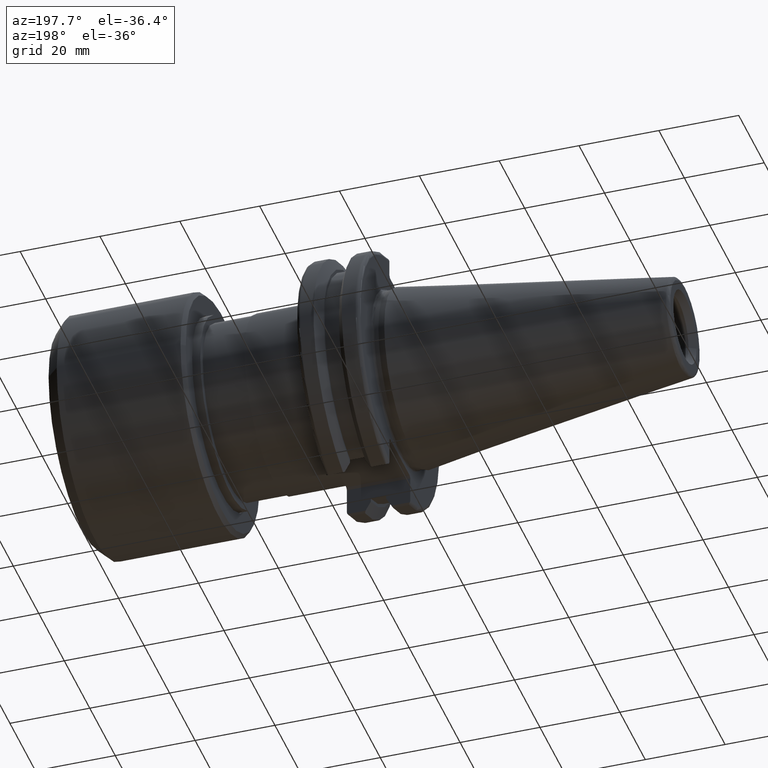
[diagram: clean part render]
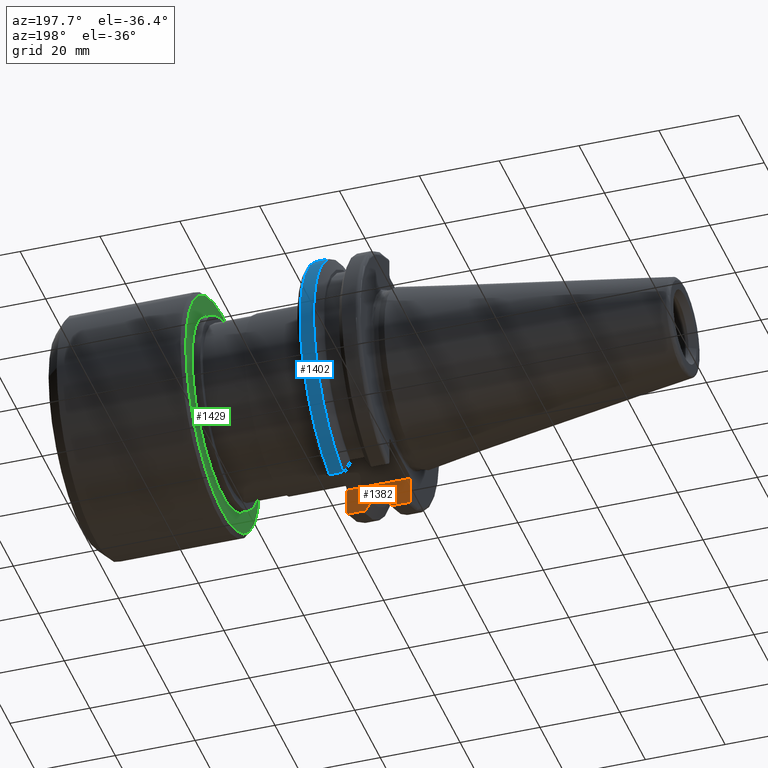
[diagram: same view with three faces highlighted in distinct colors, each labeled with its STEP entity id]
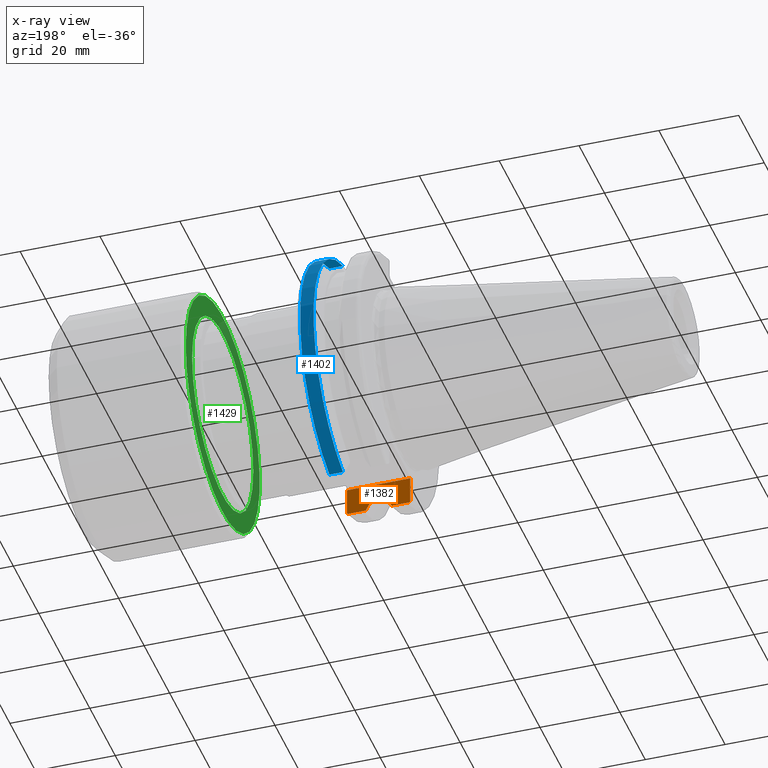
[diagram: x-ray of the same camera — body ghosted, the three highlighted faces saturated]
A machine part, auxiliary view with three faces highlighted in distinct colors.
The next image is the same camera in x-ray (body ghosted, the three faces saturated) — at least one of them is partly hidden behind the body in this view.
Their STEP definitions:

[orange] entity #1382 — the highlighted planar face has unit normal (0, -1, 0).
#253=(
BOUNDED_CURVE()
B_SPLINE_CURVE(2,(#2363,#2364,#2365),.UNSPECIFIED.,.F.,.F.)
B_SPLINE_CURVE_WITH_KNOTS((3,3),(0.,0.276549142795512),.UNSPECIFIED.)
CURVE()
GEOMETRIC_REPRESENTATION_ITEM()
RATIONAL_B_SPLINE_CURVE((1.,1.00095203904184,1.00031614445102))
REPRESENTATION_ITEM('')
);
#254=(
BOUNDED_CURVE()
B_SPLINE_CURVE(2,(#2373,#2374,#2375),.UNSPECIFIED.,.F.,.F.)
B_SPLINE_CURVE_WITH_KNOTS((3,3),(0.0550586467392022,0.33160778953585),
 .UNSPECIFIED.)
CURVE()
GEOMETRIC_REPRESENTATION_ITEM()
RATIONAL_B_SPLINE_CURVE((1.00031614445148,1.00095203904325,1.))
REPRESENTATION_ITEM('')
);
#269=B_SPLINE_CURVE_WITH_KNOTS('',3,(#2301,#2302,#2303,#2304,#2305,#2306),
 .UNSPECIFIED.,.F.,.F.,(4,2,4),(0.097738363091569,0.112311108149119,0.150804350305566),
 .UNSPECIFIED.);
#274=B_SPLINE_CURVE_WITH_KNOTS('',3,(#2378,#2379,#2380,#2381,#2382,#2383),
 .UNSPECIFIED.,.F.,.F.,(4,2,4),(0.452741154494498,0.491581665024872,0.505824174364157),
 .UNSPECIFIED.);
#309=PLANE('',#1591);
#374=FACE_OUTER_BOUND('',#452,.T.);
#452=EDGE_LOOP('',(#1130,#1131,#1132,#1133,#1134,#1135,#1136,#1137,#1138,
#1139,#1140,#1141));
#519=LINE('',#2184,#596);
#534=LINE('',#2228,#611);
#549=LINE('',#2361,#626);
#550=LINE('',#2367,#627);
#551=LINE('',#2369,#628);
#552=LINE('',#2371,#629);
#553=LINE('',#2377,#630);
#554=LINE('',#2384,#631);
#596=VECTOR('',#1784,10.);
#611=VECTOR('',#1819,10.);
#626=VECTOR('',#1854,10.);
#627=VECTOR('',#1855,10.);
#628=VECTOR('',#1856,10.);
#629=VECTOR('',#1857,10.);
#630=VECTOR('',#1858,10.);
#631=VECTOR('',#1859,10.);
#746=VERTEX_POINT('',#2181);
#747=VERTEX_POINT('',#2183);
#756=VERTEX_POINT('',#2206);
#766=VERTEX_POINT('',#2226);
#780=VERTEX_POINT('',#2300);
#791=VERTEX_POINT('',#2360);
#792=VERTEX_POINT('',#2362);
#793=VERTEX_POINT('',#2366);
#794=VERTEX_POINT('',#2368);
#795=VERTEX_POINT('',#2370);
#796=VERTEX_POINT('',#2372);
#797=VERTEX_POINT('',#2376);
#866=EDGE_CURVE('',#746,#747,#519,.T.);
#888=EDGE_CURVE('',#766,#756,#534,.T.);
#907=EDGE_CURVE('',#780,#746,#269,.T.);
#921=EDGE_CURVE('',#791,#780,#549,.T.);
#922=EDGE_CURVE('',#792,#791,#253,.T.);
#923=EDGE_CURVE('',#793,#792,#550,.T.);
#924=EDGE_CURVE('',#794,#793,#551,.T.);
#925=EDGE_CURVE('',#795,#794,#552,.T.);
#926=EDGE_CURVE('',#796,#795,#254,.T.);
#927=EDGE_CURVE('',#797,#796,#553,.T.);
#928=EDGE_CURVE('',#756,#797,#274,.T.);
#929=EDGE_CURVE('',#747,#766,#554,.T.);
#1130=ORIENTED_EDGE('',*,*,#907,.F.);
#1131=ORIENTED_EDGE('',*,*,#921,.F.);
#1132=ORIENTED_EDGE('',*,*,#922,.F.);
#1133=ORIENTED_EDGE('',*,*,#923,.F.);
#1134=ORIENTED_EDGE('',*,*,#924,.F.);
#1135=ORIENTED_EDGE('',*,*,#925,.F.);
#1136=ORIENTED_EDGE('',*,*,#926,.F.);
#1137=ORIENTED_EDGE('',*,*,#927,.F.);
#1138=ORIENTED_EDGE('',*,*,#928,.F.);
#1139=ORIENTED_EDGE('',*,*,#888,.F.);
#1140=ORIENTED_EDGE('',*,*,#929,.F.);
#1141=ORIENTED_EDGE('',*,*,#866,.F.);
#1382=ADVANCED_FACE('',(#374),#309,.F.);
#1591=AXIS2_PLACEMENT_3D('',#2359,#1852,#1853);
#1784=DIRECTION('',(0.,0.,1.));
#1819=DIRECTION('',(0.,0.,-1.));
#1852=DIRECTION('center_axis',(0.,-1.,0.));
#1853=DIRECTION('ref_axis',(-1.,0.,0.));
#1854=DIRECTION('',(1.,0.,0.));
#1855=DIRECTION('',(0.,0.,-1.));
#1856=DIRECTION('',(1.,0.,0.));
#1857=DIRECTION('',(0.,0.,1.));
#1858=DIRECTION('',(1.,0.,0.));
#1859=DIRECTION('',(-1.,0.,0.));
#2181=CARTESIAN_POINT('',(19.05,-8.19,-29.6392712461019));
#2183=CARTESIAN_POINT('',(19.05,-8.19,-23.1));
#2184=CARTESIAN_POINT('',(19.05,-8.19,-11.3));
#2206=CARTESIAN_POINT('',(3.175,-8.19,-29.6392712461019));
#2226=CARTESIAN_POINT('',(3.175,-8.19,-23.1));
#2228=CARTESIAN_POINT('',(3.175,-8.19,-11.3));
#2300=CARTESIAN_POINT('',(18.9058722749097,-8.19,-30.1755016258903));
#2301=CARTESIAN_POINT('Ctrl Pts',(18.9058722749097,-8.19,-30.1755016258903));
#2302=CARTESIAN_POINT('Ctrl Pts',(18.9324477233044,-8.19,-30.1299319366157));
#2303=CARTESIAN_POINT('Ctrl Pts',(18.9550700364447,-8.19,-30.0829389905409));
#2304=CARTESIAN_POINT('Ctrl Pts',(19.0210043632013,-8.19,-29.9188002007263));
#2305=CARTESIAN_POINT('Ctrl Pts',(19.05,-8.19,-29.76758205329));
#2306=CARTESIAN_POINT('Ctrl Pts',(19.05,-8.19,-29.6392712461019));
#2359=CARTESIAN_POINT('Origin',(20.05,-8.19,-22.6));
#2360=CARTESIAN_POINT('',(14.3815146964874,-8.19,-30.1755016258903));
#2361=CARTESIAN_POINT('',(16.8551333845378,-8.19,-30.1755016258903));
#2362=CARTESIAN_POINT('',(13.0491,-8.19,-27.7771386827498));
#2363=CARTESIAN_POINT('Ctrl Pts',(13.0491,-8.19,-27.7771386827498));
#2364=CARTESIAN_POINT('Ctrl Pts',(13.68773643849,-8.19,-28.9303689539956));
#2365=CARTESIAN_POINT('Ctrl Pts',(14.3815146964874,-8.19,-30.1755016258903));
#2366=CARTESIAN_POINT('',(13.0491,-8.19,-26.932255754021));
#2367=CARTESIAN_POINT('',(13.0491,-8.19,-11.3));
#2368=CARTESIAN_POINT('',(9.2191,-8.19,-26.932255754021));
#2369=CARTESIAN_POINT('',(11.1341,-8.19,-26.932255754021));
#2370=CARTESIAN_POINT('',(9.2191,-8.19,-27.7771386827498));
#2371=CARTESIAN_POINT('',(9.2191,-8.19,-11.3));
#2372=CARTESIAN_POINT('',(7.88668530351256,-8.19,-30.1755016258903));
#2373=CARTESIAN_POINT('Ctrl Pts',(7.88668530351256,-8.19,-30.1755016258903));
#2374=CARTESIAN_POINT('Ctrl Pts',(8.5804635615235,-8.19,-28.9303689539712));
#2375=CARTESIAN_POINT('Ctrl Pts',(9.2191,-8.19,-27.7771386827498));
#2376=CARTESIAN_POINT('',(3.31912772509028,-8.19,-30.1755016258903));
#2377=CARTESIAN_POINT('',(5.39146661546218,-8.19,-30.1755016258903));
#2378=CARTESIAN_POINT('Ctrl Pts',(3.175,-8.19,-29.6392712461018));
#2379=CARTESIAN_POINT('Ctrl Pts',(3.175,-8.19,-29.7687396145364));
#2380=CARTESIAN_POINT('Ctrl Pts',(3.20451443291695,-8.19,-29.9212724384851));
#2381=CARTESIAN_POINT('Ctrl Pts',(3.27103565282437,-8.19,-30.0852355256475));
#2382=CARTESIAN_POINT('Ctrl Pts',(3.29318362718666,-8.19,-30.131014531546));
#2383=CARTESIAN_POINT('Ctrl Pts',(3.31912772509028,-8.19,-30.1755016258903));
#2384=CARTESIAN_POINT('',(17.87875,-8.19,-23.1));

[blue] entity #1402 — the highlighted cylindrical surface (partial cylindrical patch) has radius 31.75 mm, axis along (1, 0, 0).
#342=CYLINDRICAL_SURFACE('',#1621,31.75);
#394=FACE_OUTER_BOUND('',#473,.T.);
#473=EDGE_LOOP('',(#1230,#1231,#1232,#1233));
#537=LINE('',#2274,#614);
#571=LINE('',#2511,#648);
#614=VECTOR('',#1832,10.);
#648=VECTOR('',#1934,10.);
#685=CIRCLE('',#1585,31.75);
#697=CIRCLE('',#1622,31.75);
#770=VERTEX_POINT('',#2248);
#771=VERTEX_POINT('',#2257);
#773=VERTEX_POINT('',#2270);
#819=VERTEX_POINT('',#2510);
#894=EDGE_CURVE('',#770,#771,#685,.T.);
#898=EDGE_CURVE('',#773,#770,#537,.T.);
#968=EDGE_CURVE('',#771,#819,#571,.T.);
#970=EDGE_CURVE('',#773,#819,#697,.T.);
#1230=ORIENTED_EDGE('',*,*,#894,.F.);
#1231=ORIENTED_EDGE('',*,*,#898,.F.);
#1232=ORIENTED_EDGE('',*,*,#970,.T.);
#1233=ORIENTED_EDGE('',*,*,#968,.F.);
#1402=ADVANCED_FACE('',(#394),#342,.T.);
#1585=AXIS2_PLACEMENT_3D('',#2258,#1827,#1828);
#1621=AXIS2_PLACEMENT_3D('',#2515,#1935,#1936);
#1622=AXIS2_PLACEMENT_3D('',#2516,#1937,#1938);
#1827=DIRECTION('center_axis',(1.,0.,0.));
#1828=DIRECTION('ref_axis',(0.,1.,-6.12323399573677E-17));
#1832=DIRECTION('',(1.,0.,0.));
#1934=DIRECTION('',(-1.,0.,0.));
#1935=DIRECTION('center_axis',(1.,0.,0.));
#1936=DIRECTION('ref_axis',(0.,1.,0.));
#1937=DIRECTION('center_axis',(1.,0.,0.));
#1938=DIRECTION('ref_axis',(0.,0.,-1.));
#2248=CARTESIAN_POINT('',(18.05,8.67204822802685,-30.5427254764662));
#2257=CARTESIAN_POINT('',(18.05,8.67204822802685,30.5427254764662));
#2258=CARTESIAN_POINT('Origin',(18.05,0.,0.));
#2270=CARTESIAN_POINT('',(14.6602667690756,8.67204822802685,-30.5427254764662));
#2274=CARTESIAN_POINT('',(16.8551333845378,8.67204822802685,-30.5427254764662));
#2510=CARTESIAN_POINT('',(14.6602667690756,8.67204822802685,30.5427254764662));
#2511=CARTESIAN_POINT('',(16.8551333845378,8.67204822802685,30.5427254764662));
#2515=CARTESIAN_POINT('Origin',(16.8551333845378,0.,0.));
#2516=CARTESIAN_POINT('Origin',(14.6602667690756,0.,0.));

[green] entity #1429 — the highlighted planar face has unit normal (-1, 0, 0).
#298=FACE_BOUND('',#505,.T.);
#332=PLANE('',#1684);
#421=FACE_OUTER_BOUND('',#504,.T.);
#504=EDGE_LOOP('',(#1344));
#505=EDGE_LOOP('',(#1345));
#717=CIRCLE('',#1673,24.);
#723=CIRCLE('',#1683,29.);
#829=VERTEX_POINT('',#2705);
#835=VERTEX_POINT('',#2724);
#996=EDGE_CURVE('',#829,#829,#717,.T.);
#1005=EDGE_CURVE('',#835,#835,#723,.T.);
#1344=ORIENTED_EDGE('',*,*,#1005,.F.);
#1345=ORIENTED_EDGE('',*,*,#996,.T.);
#1429=ADVANCED_FACE('',(#421,#298),#332,.T.);
#1673=AXIS2_PLACEMENT_3D('',#2707,#2047,#2048);
#1683=AXIS2_PLACEMENT_3D('',#2726,#2070,#2071);
#1684=AXIS2_PLACEMENT_3D('',#2727,#2072,#2073);
#2047=DIRECTION('center_axis',(1.,0.,0.));
#2048=DIRECTION('ref_axis',(0.,1.,0.));
#2070=DIRECTION('center_axis',(1.,0.,0.));
#2071=DIRECTION('ref_axis',(0.,-1.,0.));
#2072=DIRECTION('center_axis',(-1.,0.,0.));
#2073=DIRECTION('ref_axis',(0.,0.,1.));
#2705=CARTESIAN_POINT('',(0.,-24.,2.93915231795365E-15));
#2707=CARTESIAN_POINT('Origin',(0.,0.,0.));
#2724=CARTESIAN_POINT('',(0.,29.,3.55147571752732E-15));
#2726=CARTESIAN_POINT('Origin',(0.,0.,0.));
#2727=CARTESIAN_POINT('Origin',(0.,30.,0.));